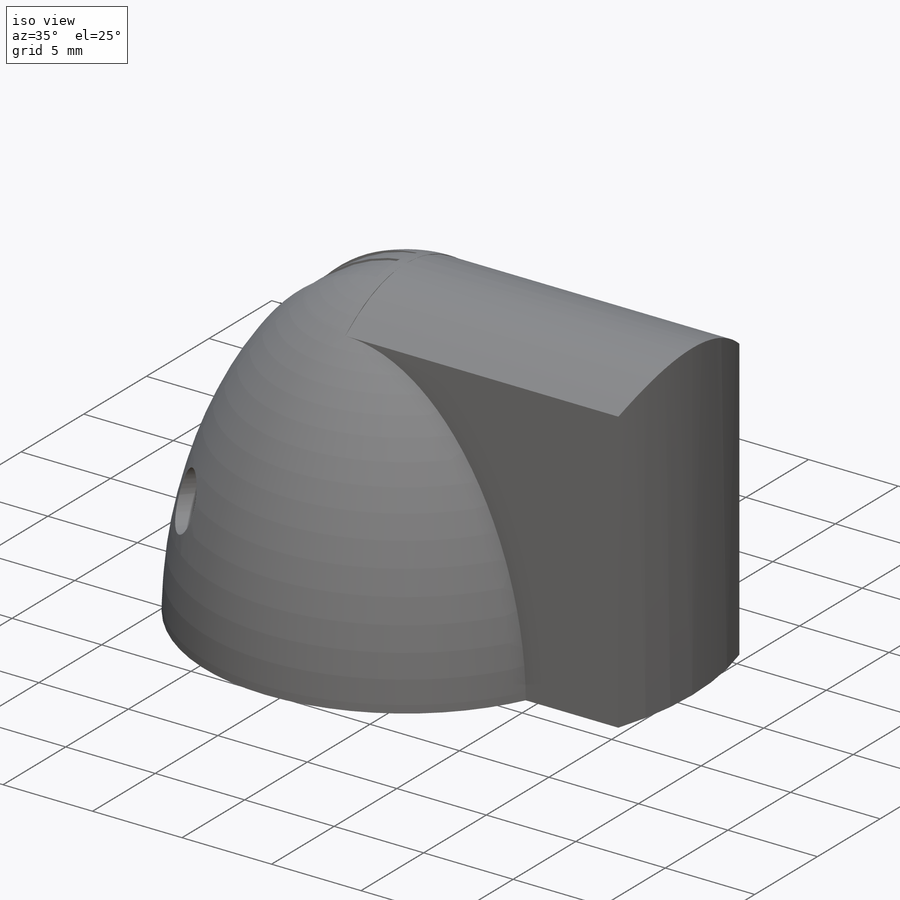
[diagram: iso view]
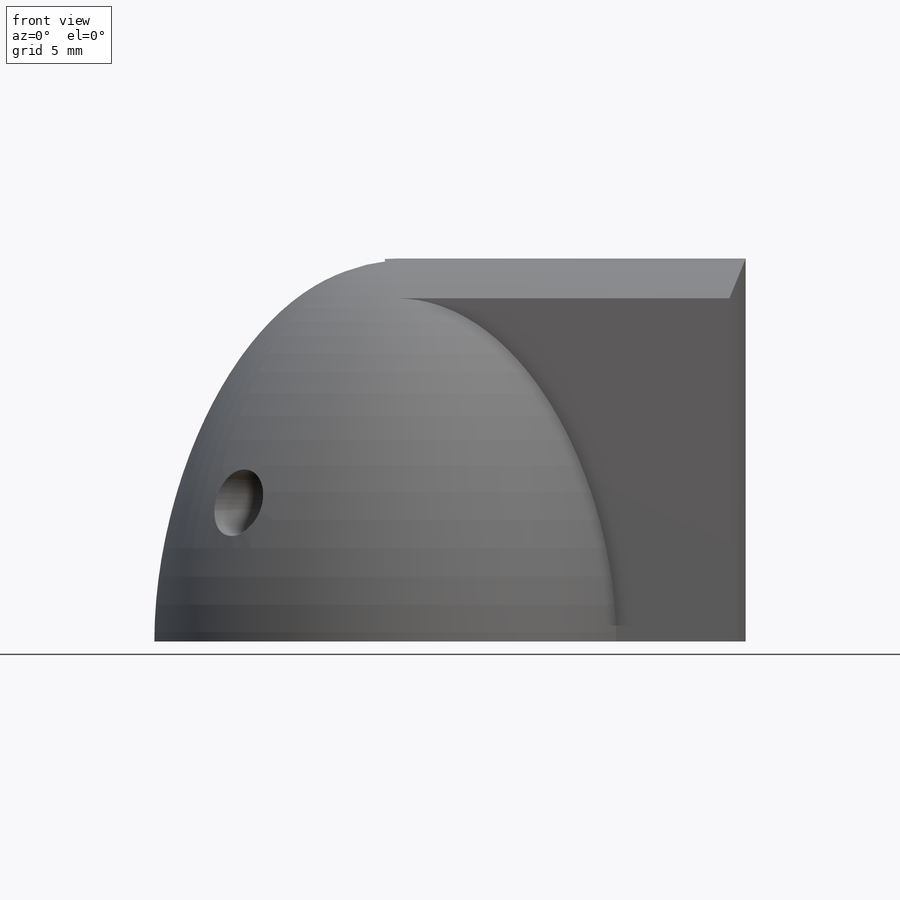
[diagram: front view]
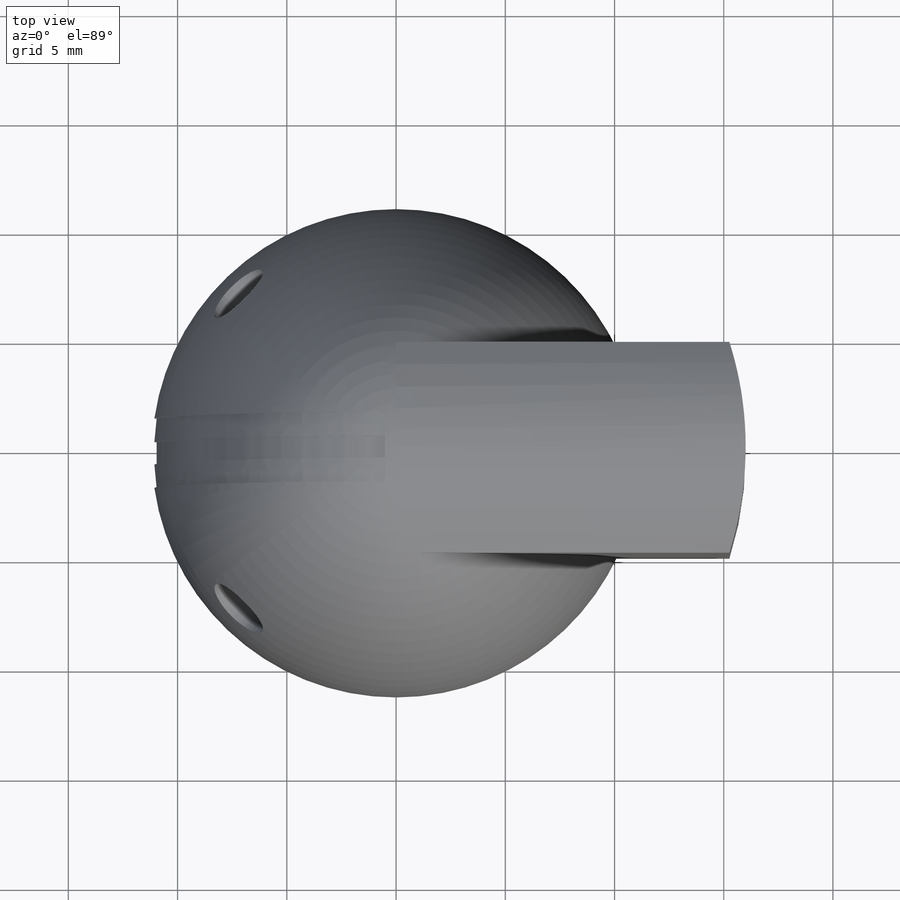
[diagram: top view]
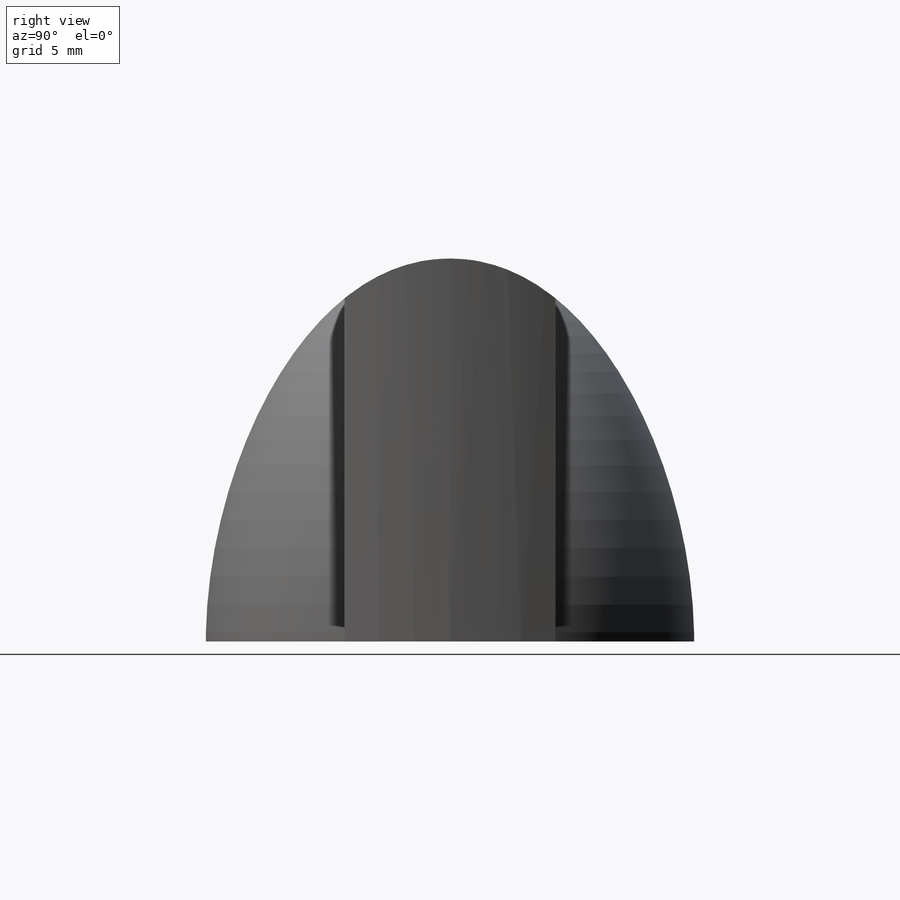
[diagram: right view]
SOLIDWORKS PART (.sldprt)
format: sldprt  version: not decoded by parser v0  size: 345,600 bytes
history: native  units: mm
features: sketch x11, cut_extrude x5, plane x3, material x1, revolve x1, extrude x1, sweep x1 (+11 scaffold rows collapsed)
feature tree (34):
  scaffold x11  (default folders/planes/origin — collapsed)
  material  "PMMA"
  sketch  "Sketch1"  dims[c1.D1=22.352mm c1.D2=22.352mm c2.D1=11.176mm c2.D2=17.526mm]
  revolve  "Revolve1"  Angle=360deg
  sketch  "Sketch2"  dims[c1.D1=4.826mm c1.D2=9.652mm c2.D1=4.826mm]
  extrude  "Boss-Extrude1"  Depth=17.526mm
  sketch  "Sketch3"
  cut_extrude  "Cut-Extrude1"  Depth=16.002mm
  sketch  "Sketch5"  dims[D1=5.4864mm D2=5.4864mm]
  cut_extrude  "Cut-Extrude2"  Depth=12.7mm
  plane  "Plane1"  Offset=11.991867mm
  sketch  "Sketch7"  dims[c1.D1=135.0deg c2.D1=~15.36568mm c3.D1=45.0deg]
  sketch  "3DSketch1"  dims[D1=6.35mm]
  plane  "Plane4"
  sketch  "Sketch8"  dims[D1=1.5875mm]
  cut_extrude  "Cut-Extrude3"  Depth=9.652mm
  sketch  "Sketch9"  dims[D1=~4.657814mm]
  cut_extrude  "Cut-Extrude4"  Depth=3.048mm
  plane  "Plane5"
  sketch  "Sketch10"  dims[D1=1.5875mm]
  cut_extrude  "Cut-Extrude5"  Depth=9.652mm
  sketch  "Skica1"  dims[c1.D1=22.352mm c1.D2=22.352mm c1.D3=22.1488mm c2.D2=0.1016mm c2.D3=0.1016mm c2.D4=1.0795mm]
  sketch  "Skica2"
  sweep  "Odebrat tažením po křivce1"
decode coverage: 16 of 19 modeling features carry decoded parameters
note: ~ marks probable driven/reference dimensions
note: suppression state not decoded; provenance and decode notes live in map.json
